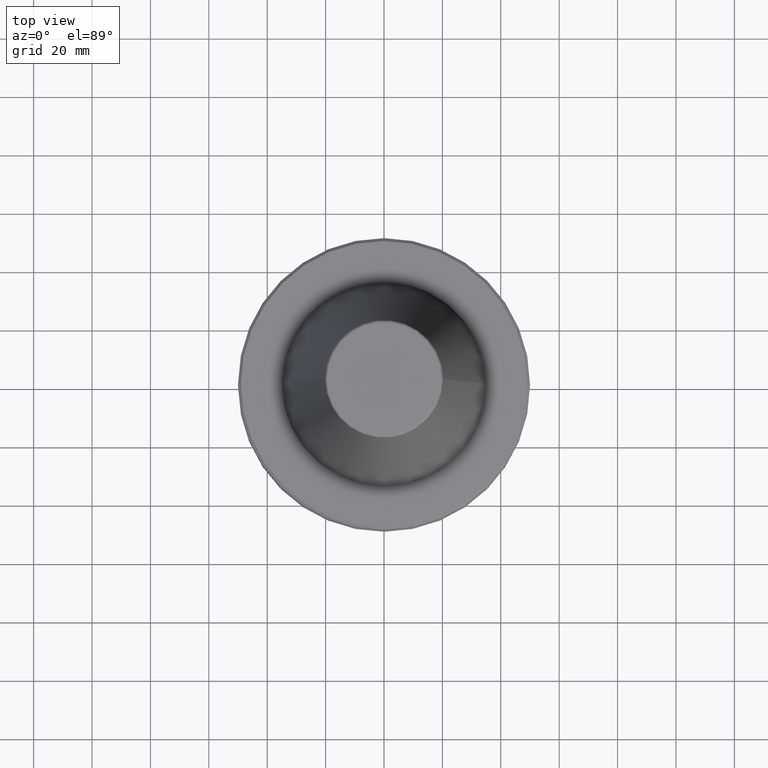
[diagram: clean part render]
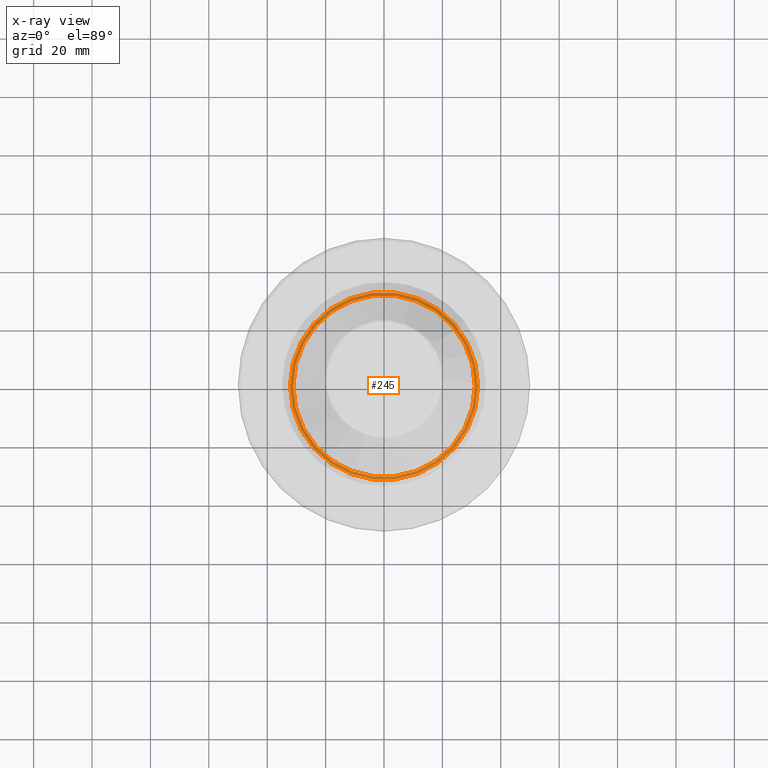
[diagram: x-ray — body ghosted, one internal face saturated and labeled with its STEP entity id]
A machine part, top view, then the same camera in x-ray: the body is ghosted and one INTERNAL B-rep face — a face not visible from any outside direction — is saturated and labeled: STEP entity #245.
In plain terms, the highlighted planar face has unit normal (0, 0, -1).
Its self-contained STEP definition (entity closure, byte-faithful):
#17 = DIRECTION ( 'NONE',  ( -0.0000000000000000000, -0.0000000000000000000, 1.000000000000000000 ) ) ;
#22 = DIRECTION ( 'NONE',  ( -1.000000000000000000, 0.0000000000000000000, -0.0000000000000000000 ) ) ;
#69 = CIRCLE ( 'NONE', #564, 31.11602540378572400 ) ;
#73 = CARTESIAN_POINT ( 'NONE',  ( -32.20000000000000300, 0.0000000000000000000, -44.00000000000137100 ) ) ;
#97 = CIRCLE ( 'NONE', #136, 32.20000000000000300 ) ;
#108 = DIRECTION ( 'NONE',  ( -1.000000000000000000, 0.0000000000000000000, 0.0000000000000000000 ) ) ;
#132 = CARTESIAN_POINT ( 'NONE',  ( 0.0000000000000000000, 0.0000000000000000000, -44.00000000000137100 ) ) ;
#136 = AXIS2_PLACEMENT_3D ( 'NONE', #799, #17, #934 ) ;
#178 = DIRECTION ( 'NONE',  ( 1.000000000000000000, 0.0000000000000000000, 0.0000000000000000000 ) ) ;
#194 = DIRECTION ( 'NONE',  ( 0.0000000000000000000, 0.0000000000000000000, -1.000000000000000000 ) ) ;
#199 = CARTESIAN_POINT ( 'NONE',  ( -31.11602540378572400, 3.818817669314533100E-015, -44.00000000000137100 ) ) ;
#228 = EDGE_CURVE ( 'NONE', #349, #572, #483, .T. ) ;
#245 = ADVANCED_FACE ( 'NONE', ( #780, #340 ), #638, .F. ) ;
#277 = CARTESIAN_POINT ( 'NONE',  ( 32.20000000000000300, 3.992348565220366500E-015, -44.00000000000137100 ) ) ;
#340 = FACE_BOUND ( 'NONE', #430, .T. ) ;
#349 = VERTEX_POINT ( 'NONE', #996 ) ;
#430 = EDGE_LOOP ( 'NONE', ( #837, #1393 ) ) ;
#452 = EDGE_CURVE ( 'NONE', #742, #579, #597, .T. ) ;
#483 = CIRCLE ( 'NONE', #497, 31.11602540378572400 ) ;
#497 = AXIS2_PLACEMENT_3D ( 'NONE', #1149, #1561, #108 ) ;
#500 = DIRECTION ( 'NONE',  ( 0.0000000000000000000, 0.0000000000000000000, -1.000000000000000000 ) ) ;
#564 = AXIS2_PLACEMENT_3D ( 'NONE', #1284, #500, #1412 ) ;
#572 = VERTEX_POINT ( 'NONE', #199 ) ;
#579 = VERTEX_POINT ( 'NONE', #73 ) ;
#597 = CIRCLE ( 'NONE', #1375, 32.20000000000000300 ) ;
#638 = PLANE ( 'NONE',  #949 ) ;
#742 = VERTEX_POINT ( 'NONE', #277 ) ;
#780 = FACE_OUTER_BOUND ( 'NONE', #1143, .T. ) ;
#799 = CARTESIAN_POINT ( 'NONE',  ( 0.0000000000000000000, 0.0000000000000000000, -44.00000000000137100 ) ) ;
#837 = ORIENTED_EDGE ( 'NONE', *, *, #228, .T. ) ;
#924 = DIRECTION ( 'NONE',  ( -0.0000000000000000000, -0.0000000000000000000, 1.000000000000000000 ) ) ;
#934 = DIRECTION ( 'NONE',  ( 1.000000000000000000, 0.0000000000000000000, 0.0000000000000000000 ) ) ;
#949 = AXIS2_PLACEMENT_3D ( 'NONE', #132, #194, #22 ) ;
#996 = CARTESIAN_POINT ( 'NONE',  ( 31.11602540378572400, 0.0000000000000000000, -44.00000000000137100 ) ) ;
#1064 = EDGE_CURVE ( 'NONE', #579, #742, #97, .T. ) ;
#1143 = EDGE_LOOP ( 'NONE', ( #1168, #1206 ) ) ;
#1149 = CARTESIAN_POINT ( 'NONE',  ( 0.0000000000000000000, 0.0000000000000000000, -44.00000000000137100 ) ) ;
#1168 = ORIENTED_EDGE ( 'NONE', *, *, #1064, .T. ) ;
#1206 = ORIENTED_EDGE ( 'NONE', *, *, #452, .T. ) ;
#1284 = CARTESIAN_POINT ( 'NONE',  ( 0.0000000000000000000, 0.0000000000000000000, -44.00000000000137100 ) ) ;
#1375 = AXIS2_PLACEMENT_3D ( 'NONE', #1634, #924, #178 ) ;
#1393 = ORIENTED_EDGE ( 'NONE', *, *, #1538, .T. ) ;
#1412 = DIRECTION ( 'NONE',  ( -1.000000000000000000, 0.0000000000000000000, 0.0000000000000000000 ) ) ;
#1538 = EDGE_CURVE ( 'NONE', #572, #349, #69, .T. ) ;
#1561 = DIRECTION ( 'NONE',  ( 0.0000000000000000000, 0.0000000000000000000, -1.000000000000000000 ) ) ;
#1634 = CARTESIAN_POINT ( 'NONE',  ( 0.0000000000000000000, 0.0000000000000000000, -44.00000000000137100 ) ) ;